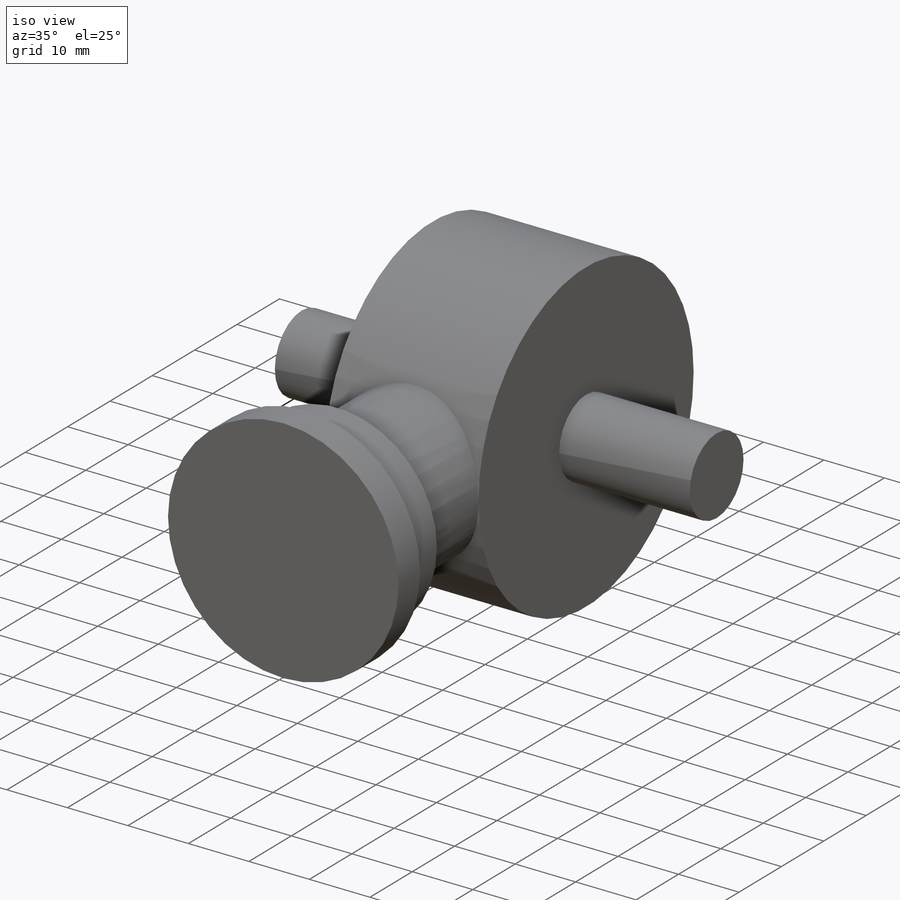
[diagram: iso view]
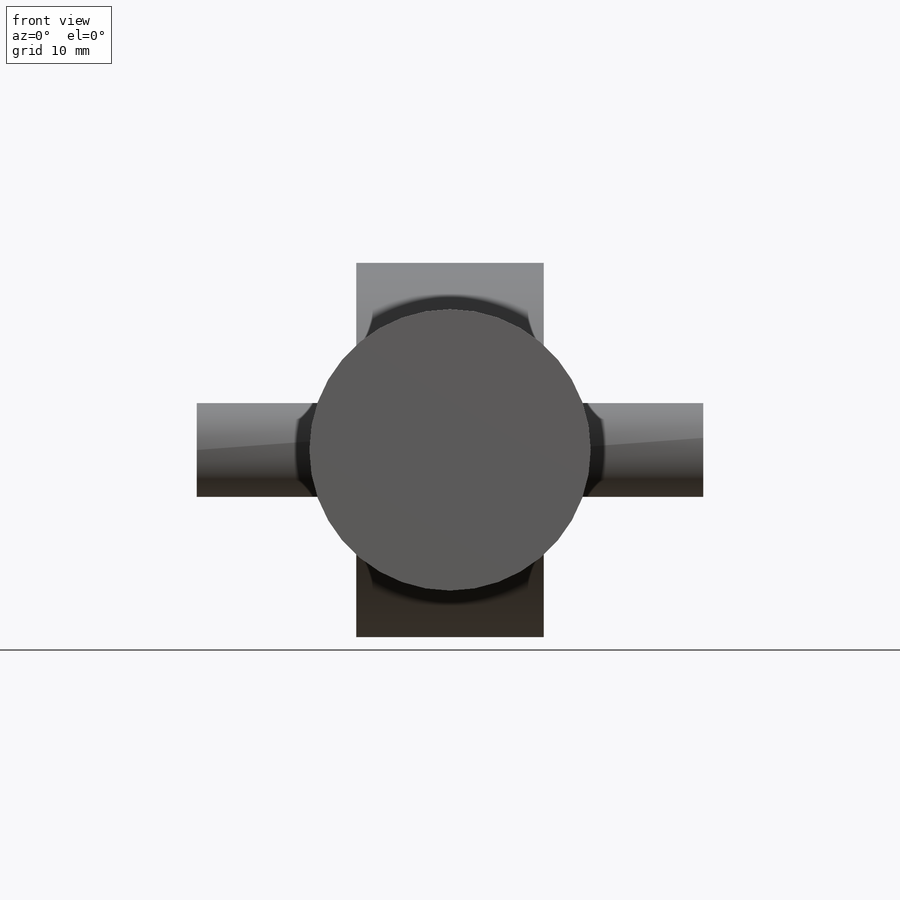
[diagram: front view]
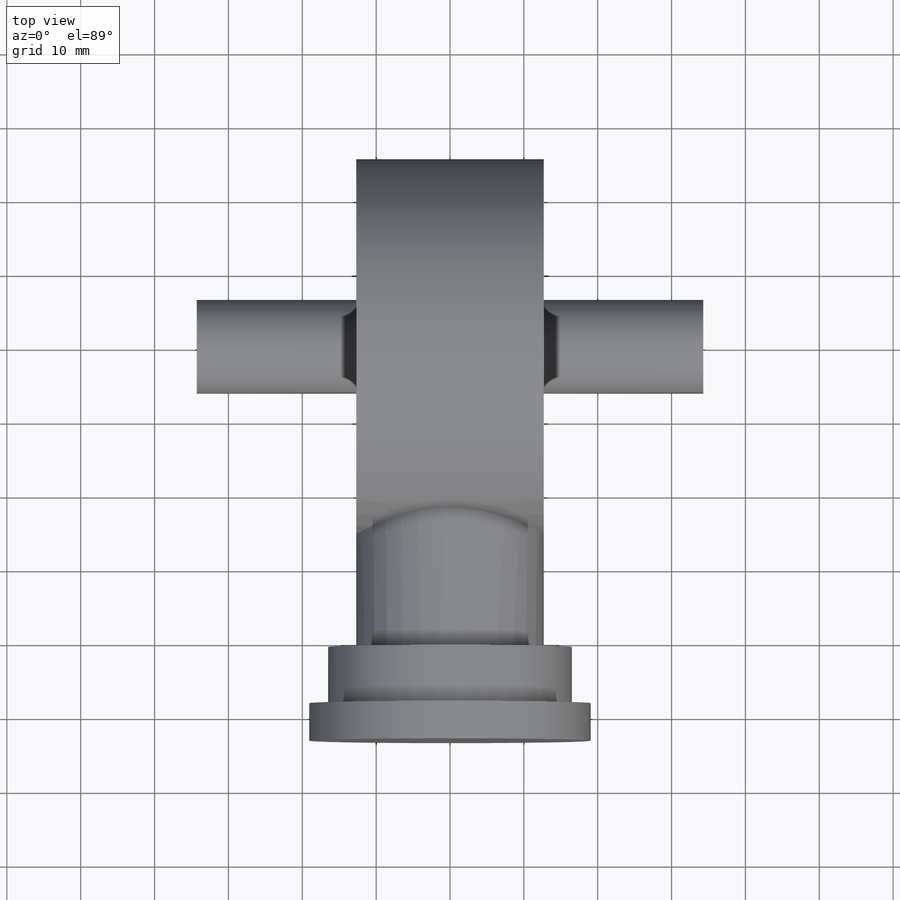
[diagram: top view]
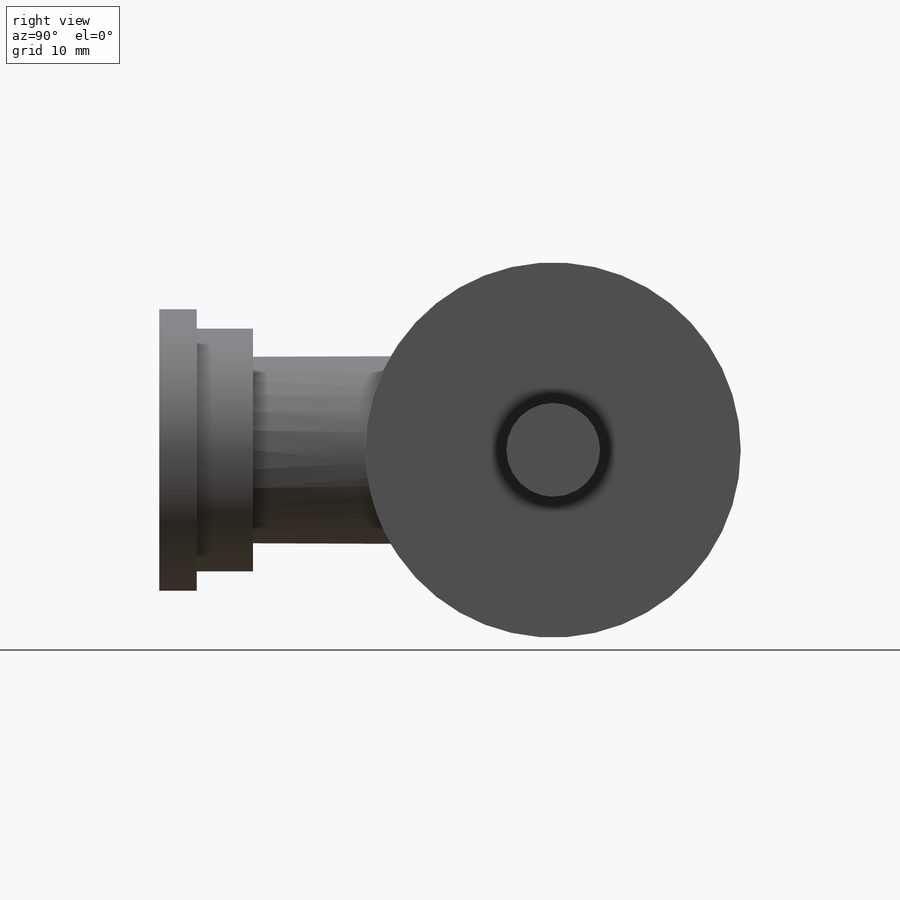
[diagram: right view]
SOLIDWORKS PART (.sldprt)
format: sldprt  version: not decoded by parser v0  size: 178,688 bytes
history: native  units: mm
features: sketch x5, extrude x5, plane x4, material x1 (+8 scaffold rows collapsed)
feature tree (23):
  scaffold x8  (default folders/planes/origin — collapsed)
  material  "Material <sin especificar>"
  plane  "Alzado"
  plane  "Planta"
  plane  "Vista lateral"
  sketch  "Croquis1"  dims[D1=50.8mm D2=12.7mm]
  extrude  "Saliente-Extruir1"  Depth=25.4mm
  plane  "Plano1"  Offset=40.64mm
  sketch  "Croquis2"
  extrude  "Saliente-Extruir2"  [1 undecoded]
  sketch  "Croquis3"  dims[D1=33.02mm]
  extrude  "Saliente-Extruir3"  Depth=7.62mm
  sketch  "Croquis4"  dims[D1=38.1mm]
  extrude  "Saliente-Extruir4"  Depth=5.08mm
  sketch  "Croquis6"  dims[D1=12.7mm]
  extrude  "Saliente-Extruir5"  Depth=68.58mm
decode coverage: 8 of 10 modeling features carry decoded parameters
note: 1 parameter value undecoded
note: suppression state not decoded; provenance and decode notes live in map.json
